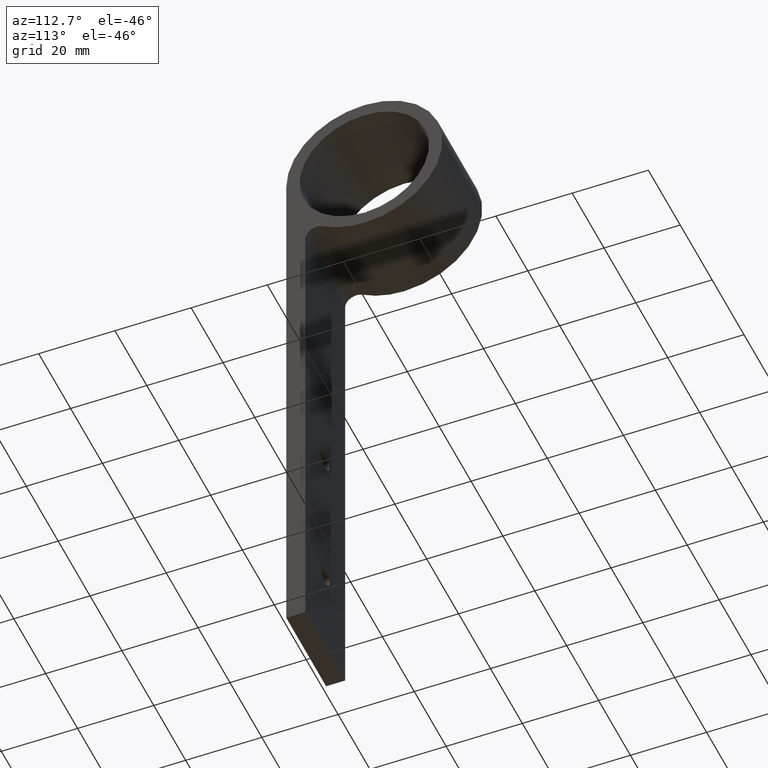
[diagram: clean part render]
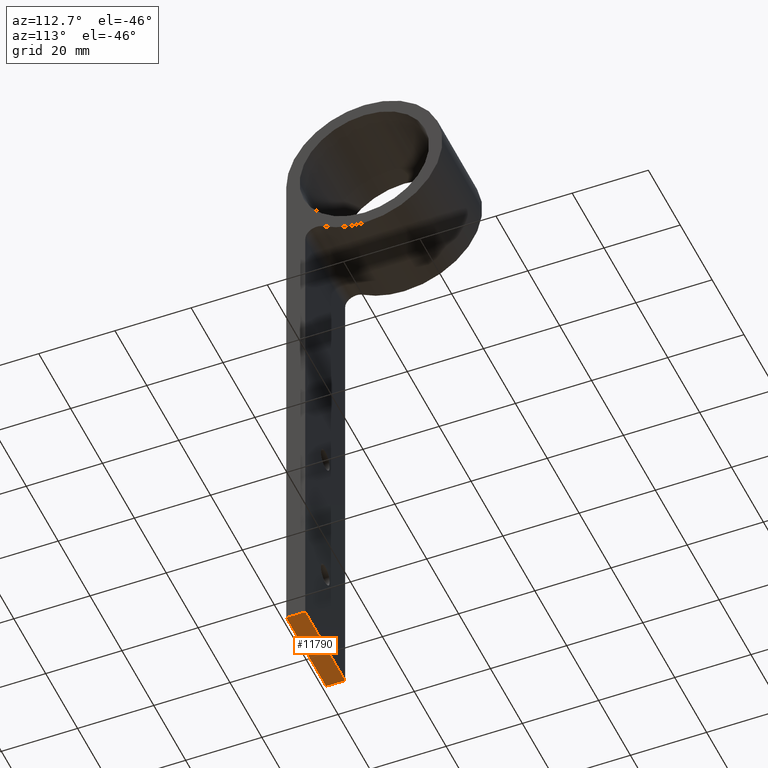
[diagram: same view with one face highlighted and labeled with its STEP entity id]
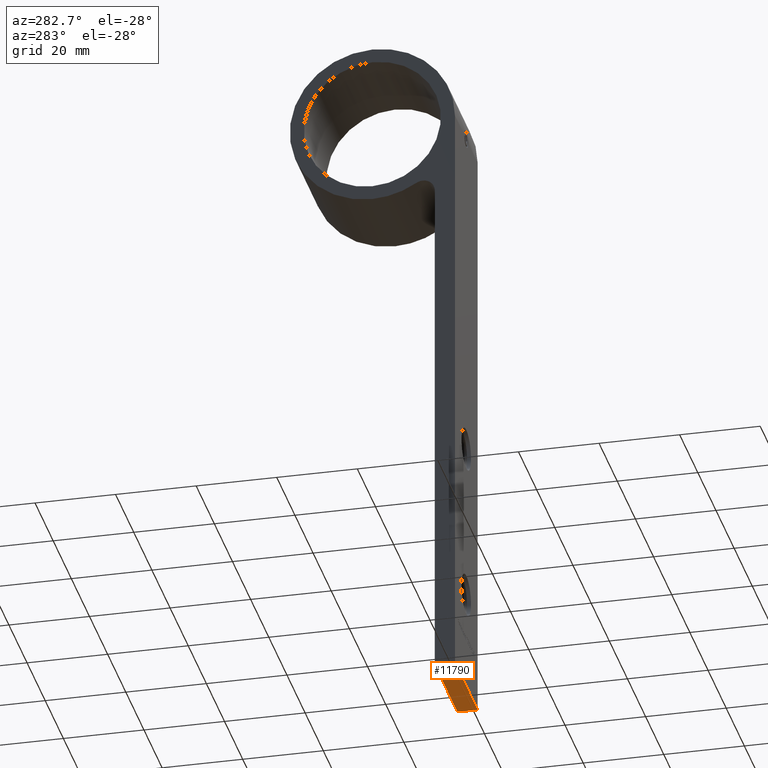
[diagram: same view with one face highlighted and labeled with its STEP entity id]
A machine part, auxiliary view. The second image highlights one B-rep face of the part: STEP entity #11790.
A second angle (auxiliary view) of the same face is appended — the face is thin or edge-on in the first view.
In plain terms, the highlighted planar face has unit normal (0, 0, 1).
Its self-contained STEP definition (entity closure, byte-faithful):
#1364 = ORIENTED_EDGE ( 'NONE', *, *, #9941, .T. ) ;
#1657 = CARTESIAN_POINT ( 'NONE',  ( 12.50000000000000000, 5.000000000000000000, -150.0000000000000000 ) ) ;
#2293 = DIRECTION ( 'NONE',  ( -0.0000000000000000000, 0.0000000000000000000, 1.000000000000000000 ) ) ;
#2551 = CARTESIAN_POINT ( 'NONE',  ( -12.50000000000000000, 5.000000000000000000, -150.0000000000000000 ) ) ;
#2988 = CARTESIAN_POINT ( 'NONE',  ( 12.50000000000000000, 0.0000000000000000000, -150.0000000000000000 ) ) ;
#3518 = CARTESIAN_POINT ( 'NONE',  ( 12.50000000000000000, 5.000000000000000000, -150.0000000000000000 ) ) ;
#3612 = ORIENTED_EDGE ( 'NONE', *, *, #7690, .F. ) ;
#4271 = VERTEX_POINT ( 'NONE', #2988 ) ;
#4276 = VECTOR ( 'NONE', #12717, 1000.000000000000000 ) ;
#4479 = LINE ( 'NONE', #5730, #10075 ) ;
#4499 = DIRECTION ( 'NONE',  ( -0.0000000000000000000, 1.000000000000000000, -0.0000000000000000000 ) ) ;
#4739 = DIRECTION ( 'NONE',  ( -0.0000000000000000000, 1.000000000000000000, -0.0000000000000000000 ) ) ;
#5314 = LINE ( 'NONE', #6177, #4276 ) ;
#5636 = CARTESIAN_POINT ( 'NONE',  ( -12.50000000000000000, 0.0000000000000000000, -150.0000000000000000 ) ) ;
#5730 = CARTESIAN_POINT ( 'NONE',  ( 12.50000000000000000, 0.0000000000000000000, -150.0000000000000000 ) ) ;
#5766 = PLANE ( 'NONE',  #14289 ) ;
#6158 = FACE_OUTER_BOUND ( 'NONE', #7458, .T. ) ;
#6177 = CARTESIAN_POINT ( 'NONE',  ( 12.50000000000000000, 5.000000000000000000, -150.0000000000000000 ) ) ;
#6560 = LINE ( 'NONE', #2551, #11114 ) ;
#7458 = EDGE_LOOP ( 'NONE', ( #1364, #9623, #3612, #14216 ) ) ;
#7690 = EDGE_CURVE ( 'NONE', #4271, #8309, #11650, .T. ) ;
#8007 = VECTOR ( 'NONE', #4739, 1000.000000000000000 ) ;
#8028 = CARTESIAN_POINT ( 'NONE',  ( 12.50000000000000000, 5.000000000000000000, -150.0000000000000000 ) ) ;
#8309 = VERTEX_POINT ( 'NONE', #8028 ) ;
#8656 = VERTEX_POINT ( 'NONE', #9472 ) ;
#9162 = VERTEX_POINT ( 'NONE', #5636 ) ;
#9472 = CARTESIAN_POINT ( 'NONE',  ( -12.50000000000000000, 5.000000000000000000, -150.0000000000000000 ) ) ;
#9606 = EDGE_CURVE ( 'NONE', #4271, #9162, #4479, .T. ) ;
#9623 = ORIENTED_EDGE ( 'NONE', *, *, #11582, .F. ) ;
#9941 = EDGE_CURVE ( 'NONE', #9162, #8656, #6560, .T. ) ;
#10075 = VECTOR ( 'NONE', #10245, 1000.000000000000000 ) ;
#10245 = DIRECTION ( 'NONE',  ( -1.000000000000000000, -0.0000000000000000000, -0.0000000000000000000 ) ) ;
#11114 = VECTOR ( 'NONE', #4499, 1000.000000000000000 ) ;
#11582 = EDGE_CURVE ( 'NONE', #8309, #8656, #5314, .T. ) ;
#11650 = LINE ( 'NONE', #1657, #8007 ) ;
#11790 = ADVANCED_FACE ( 'NONE', ( #6158 ), #5766, .F. ) ;
#12406 = DIRECTION ( 'NONE',  ( 1.000000000000000000, 0.0000000000000000000, 0.0000000000000000000 ) ) ;
#12717 = DIRECTION ( 'NONE',  ( -1.000000000000000000, -0.0000000000000000000, -0.0000000000000000000 ) ) ;
#14216 = ORIENTED_EDGE ( 'NONE', *, *, #9606, .T. ) ;
#14289 = AXIS2_PLACEMENT_3D ( 'NONE', #3518, #2293, #12406 ) ;